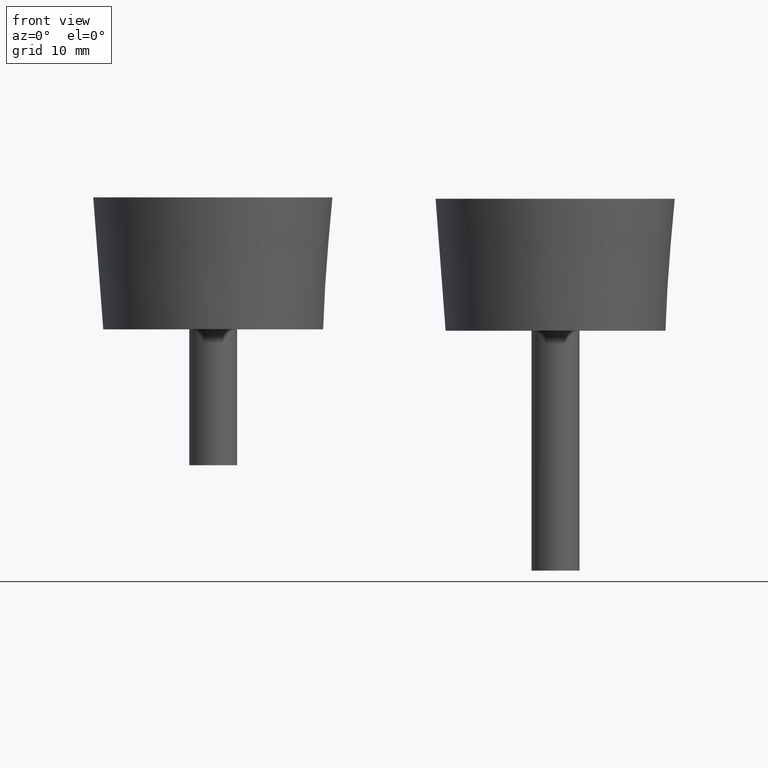
[diagram: clean part render]
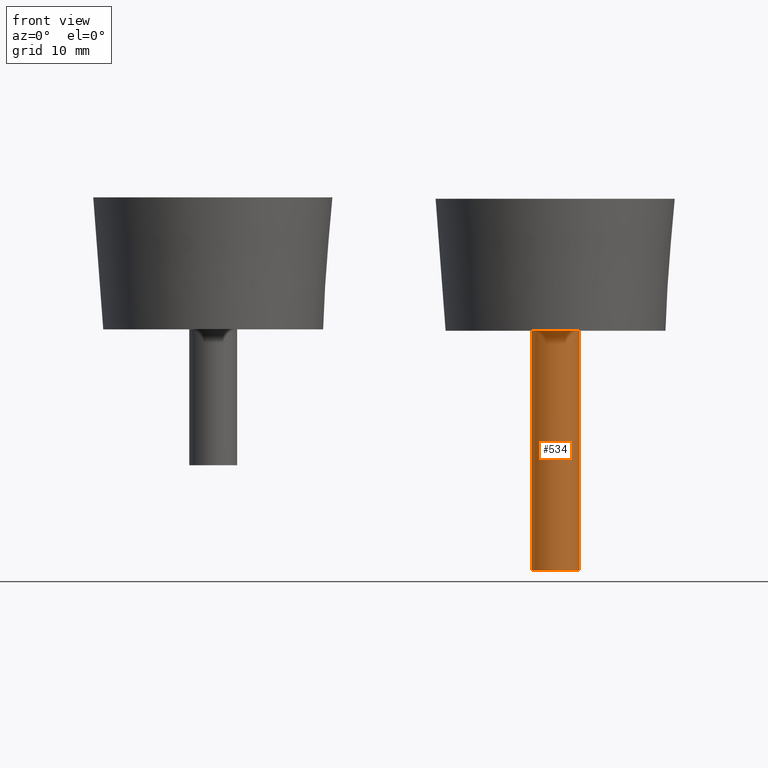
[diagram: same view with one face highlighted and labeled with its STEP entity id]
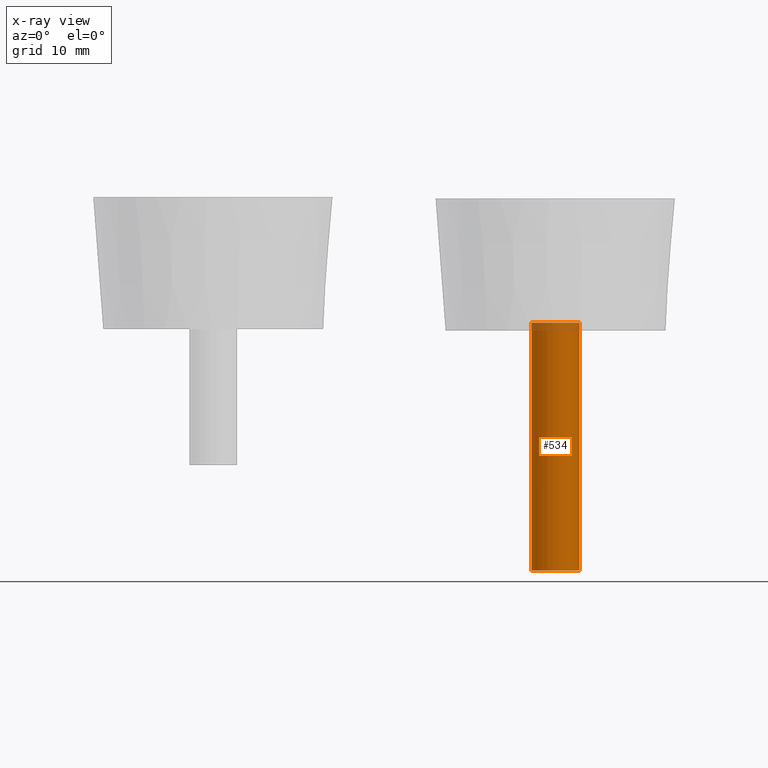
[diagram: x-ray of the same camera — body ghosted, the highlighted face saturated]
A machine part, front view. The second image highlights one B-rep face of the part: STEP entity #534.
The next image is the same camera in x-ray: the body ghosted, the highlighted face saturated — about 3% of this face is hidden behind the body in this view.
In plain terms, the highlighted cylindrical surface (bore or boss wall) has radius 3 mm, axis along (-0, 0, -1).
Its self-contained STEP definition (entity closure, byte-faithful):
#78=FACE_BOUND('',#200,.T.);
#126=FACE_OUTER_BOUND('',#199,.T.);
#199=EDGE_LOOP('',(#439));
#200=EDGE_LOOP('',(#440));
#271=CIRCLE('',#613,3.);
#272=CIRCLE('',#614,3.);
#319=VERTEX_POINT('',#946);
#320=VERTEX_POINT('',#948);
#367=EDGE_CURVE('',#319,#319,#271,.T.);
#368=EDGE_CURVE('',#320,#320,#272,.T.);
#439=ORIENTED_EDGE('',*,*,#367,.F.);
#440=ORIENTED_EDGE('',*,*,#368,.F.);
#498=CYLINDRICAL_SURFACE('',#612,3.);
#534=ADVANCED_FACE('',(#126,#78),#498,.T.);
#612=AXIS2_PLACEMENT_3D('',#945,#766,#767);
#613=AXIS2_PLACEMENT_3D('',#947,#768,#769);
#614=AXIS2_PLACEMENT_3D('',#949,#770,#771);
#766=DIRECTION('center_axis',(0.,0.,-1.));
#767=DIRECTION('ref_axis',(1.,0.,0.));
#768=DIRECTION('center_axis',(0.,0.,-1.));
#769=DIRECTION('ref_axis',(1.,0.,0.));
#770=DIRECTION('center_axis',(0.,0.,1.));
#771=DIRECTION('ref_axis',(1.,0.,0.));
#945=CARTESIAN_POINT('Origin',(0.,0.,1.));
#946=CARTESIAN_POINT('',(-3.,3.67394039744206E-16,-30.));
#947=CARTESIAN_POINT('Origin',(0.,0.,-30.));
#948=CARTESIAN_POINT('',(-3.,3.67394039744206E-16,1.));
#949=CARTESIAN_POINT('Origin',(0.,0.,1.));